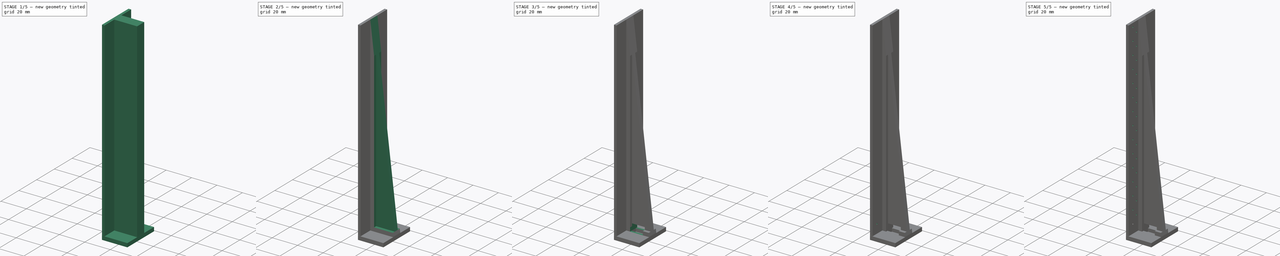
[diagram: build sequence overview — one tinted view per stage of 5, left to right]
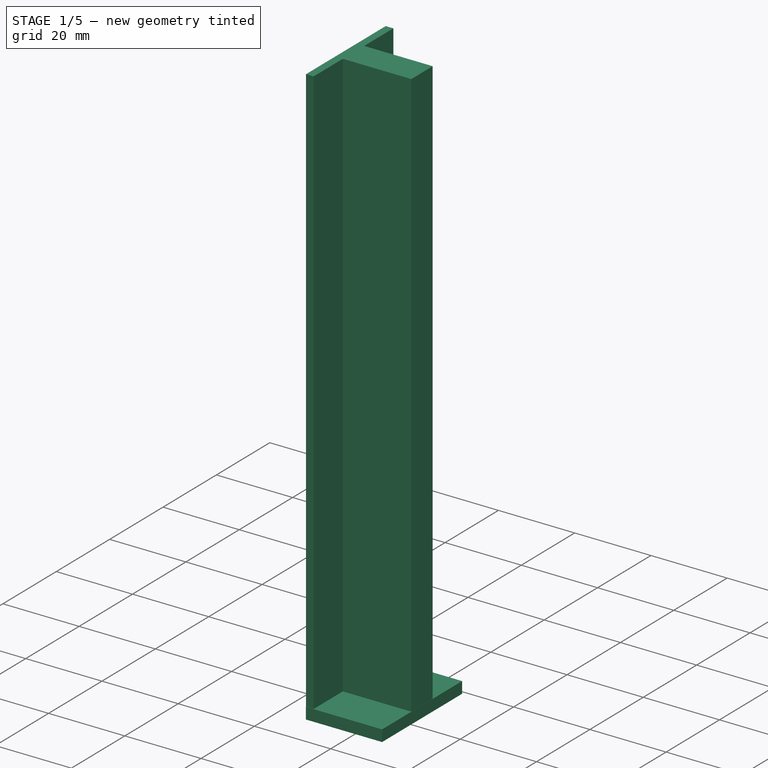
[diagram: stage 1 of 5 — iso view after this stage's code; geometry added in this stage tinted green]
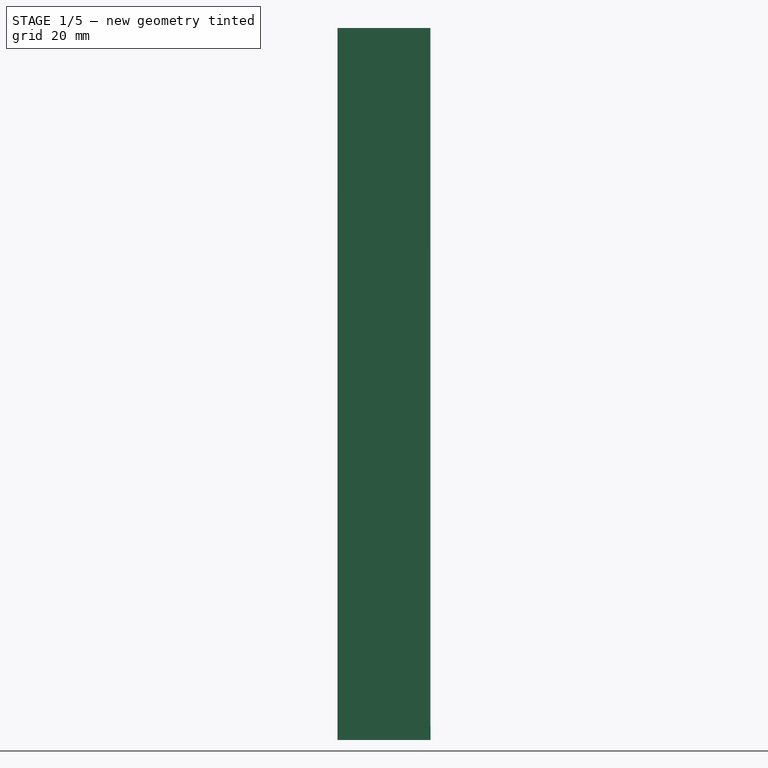
[diagram: stage 1 of 5 — front view after this stage's code; geometry added in this stage tinted green]
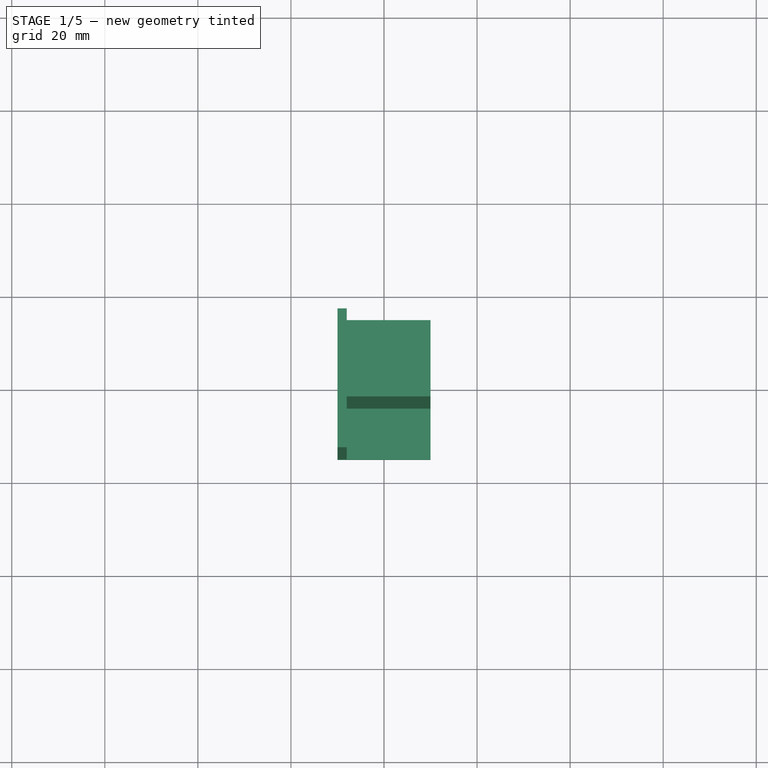
[diagram: stage 1 of 5 — top view after this stage's code; geometry added in this stage tinted green]
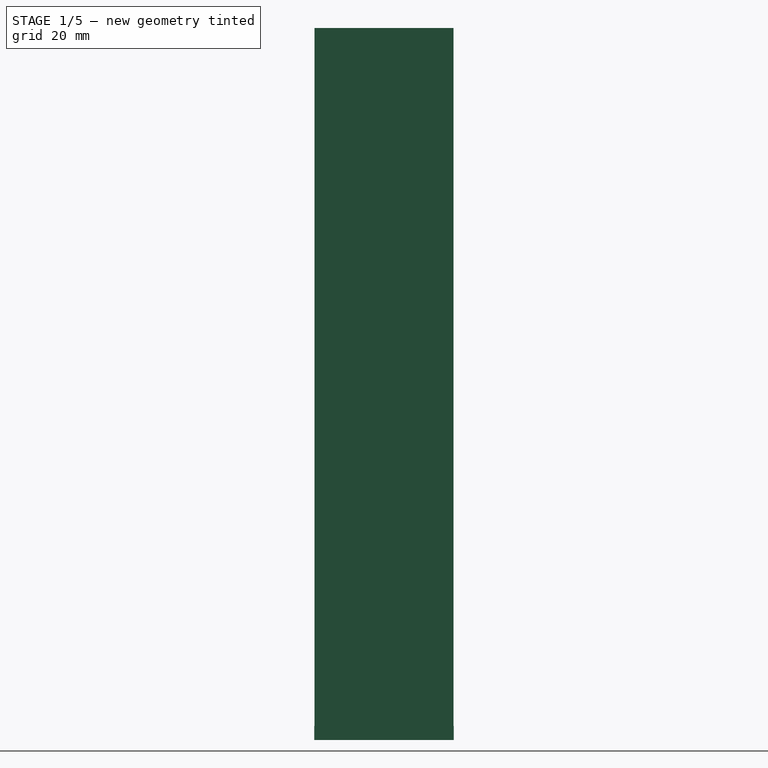
[diagram: stage 1 of 5 — right view after this stage's code; geometry added in this stage tinted green]
FCSTD DOCUMENT  (FreeCAD 0.20R29410 (Git))
Label: reglet
License: All rights reserved
LicenseURL: http://en.wikipedia.org/wiki/All_rights_reserved
objects: Sketcher::SketchObject×15, PartDesign::Pocket×10, PartDesign::LinearPattern×4, PartDesign::Pad×3, PartDesign::Body×1
note: 46 computed .brp shape members not serialized (recipe doc carries the construction recipe); baked Part::Feature solids carry a one-line shape summary decoded from their .brp

FEATURE [Sketcher::SketchObject] Sketch
  FullyConstrained = true
  MapMode = 5
  Support = -> [XY_Plane]
  sketch-geometry (4):
    g0: LineSegment StartX=10 StartY=15 StartZ=0 EndX=-10 EndY=15 EndZ=0
    g1: LineSegment StartX=-10 StartY=15 StartZ=0 EndX=-10 EndY=-15 EndZ=0
    g2: LineSegment StartX=-10 StartY=-15 StartZ=0 EndX=10 EndY=-15 EndZ=0
    g3: LineSegment StartX=10 StartY=-15 StartZ=0 EndX=10 EndY=15 EndZ=0
  constraints (9):
    c: Coincident(g0,g1)
    c: Coincident(g1,g2)
    c: Coincident(g2,g3)
    c: Coincident(g3,g0)
    c: Symmetric(g0,g2,g-1)
    c: Symmetric(g0,g1,g-1)
    c: Symmetric(g0,g0,g-2)
    c: DistanceX(g0,g0) = 20
    c: DistanceY(g3,g3) = 30
FEATURE [PartDesign::Pad] Pad
  Direction = (0,0,1)
  Length = 3
  Length2 = 10
  Profile = -> Sketch
  ReferenceAxis = -> Sketch [N_Axis]
  Type = 0
FEATURE [Sketcher::SketchObject] Sketch001
  FullyConstrained = false
  MapMode = 5
  Placement = pos=(0,0,3) rot=(0,0,1;0rad)
  Support = -> [Pad]
  sketch-geometry (4):
    g0: LineSegment StartX=-10 StartY=14.925 StartZ=0 EndX=-8 EndY=14.925 EndZ=0
    g1: LineSegment StartX=-8 StartY=14.925 StartZ=0 EndX=-8 EndY=-14.925 EndZ=0
    g2: LineSegment StartX=-8 StartY=-14.925 StartZ=0 EndX=-10 EndY=-14.925 EndZ=0
    g3: LineSegment StartX=-10 StartY=-14.925 StartZ=0 EndX=-10 EndY=14.925 EndZ=0
  constraints (9):
    c: Coincident(g0,g1)
    c: Coincident(g1,g2)
    c: Coincident(g2,g3)
    c: Coincident(g3,g0)
    c: Horizontal(g2)
    c: DistanceX(g0,g-1) = 10
    c: Symmetric(g2,g0,g-1)
    c: DistanceX(g0,g0) = 2
    c: Symmetric(g0,g1,g-1)
FEATURE [PartDesign::Pad] Pad001
  BaseFeature = -> Pad
  Direction = (0,0,1)
  Length = 150
  Length2 = 10
  Profile = -> Sketch001
  ReferenceAxis = -> Sketch001 [N_Axis]
  Type = 0
FEATURE [Sketcher::SketchObject] Sketch002
  FullyConstrained = true
  MapMode = 5
  Placement = pos=(0,0,3) rot=(0,0,1;0rad)
  Support = -> [Pad001]
FEATURE [Sketcher::SketchObject] Sketch003
  FullyConstrained = false
  MapMode = 5
  Placement = pos=(0,0,3) rot=(0,0,1;0rad)
  Support = -> [Pad001]
  sketch-geometry (4):
    g0: LineSegment StartX=-8.02879 StartY=4 StartZ=0 EndX=9.97121 EndY=4 EndZ=0
    g1: LineSegment StartX=9.97121 StartY=4 StartZ=0 EndX=9.97121 EndY=-4 EndZ=0
    g2: LineSegment StartX=9.97121 StartY=-4 StartZ=0 EndX=-8.00779 EndY=-4 EndZ=0
    g3: LineSegment StartX=-8.00779 StartY=-4 StartZ=0 EndX=-8.02879 EndY=4 EndZ=0
  constraints (9):
    c: Coincident(g0,g1)
    c: Coincident(g1,g2)
    c: Coincident(g2,g3)
    c: Coincident(g3,g0)
    c: Horizontal(g0)
    c: Horizontal(g2)
    c: Symmetric(g0,g1,g-1)
    c: DistanceX(g0,g0) = 18
    c: DistanceY(g1,g1) = 8
FEATURE [PartDesign::Pad] Pad002
  BaseFeature = -> Pad001
  Direction = (0,0,1)
  Length = 150
  Length2 = 10
  Profile = -> Sketch003
  ReferenceAxis = -> Sketch003 [N_Axis]
  Type = 0
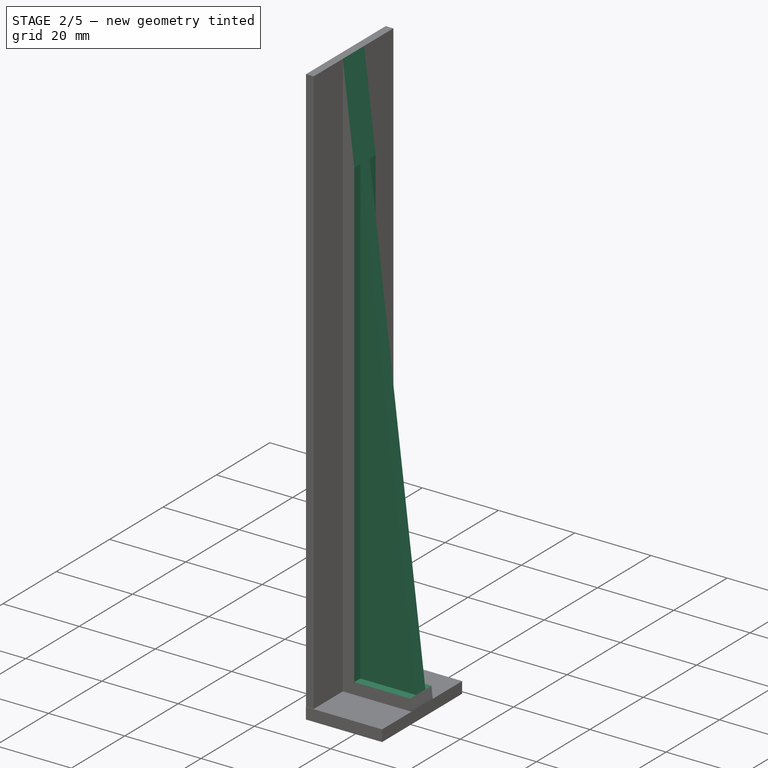
[diagram: stage 2 of 5 — iso view after this stage's code; geometry added in this stage tinted green]
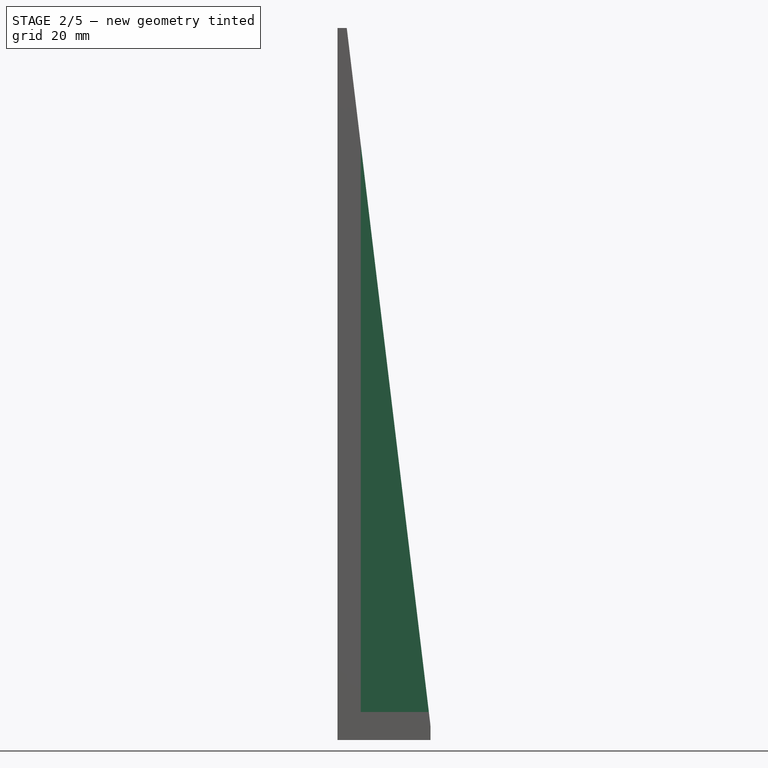
[diagram: stage 2 of 5 — front view after this stage's code; geometry added in this stage tinted green]
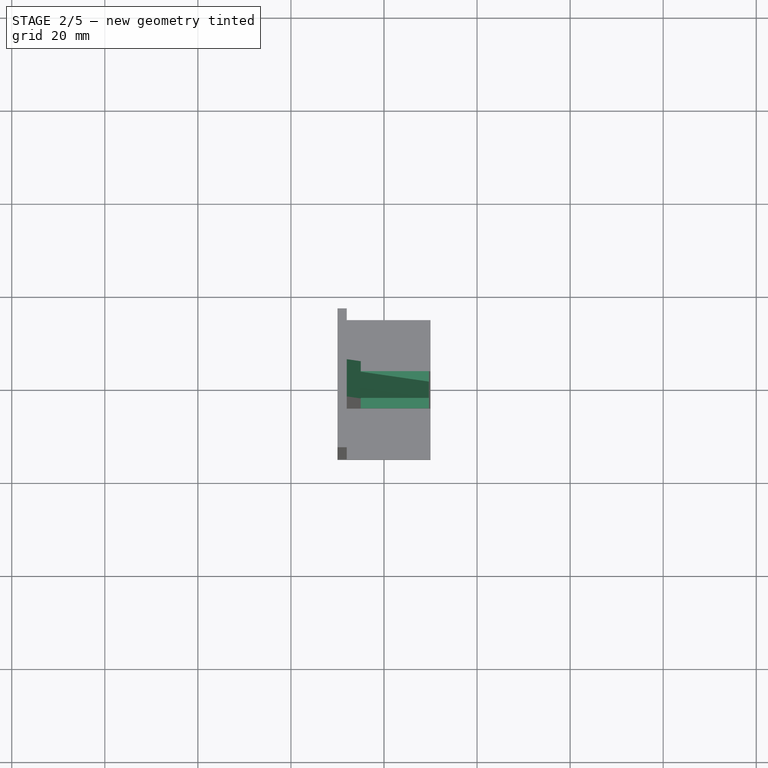
[diagram: stage 2 of 5 — top view after this stage's code; geometry added in this stage tinted green]
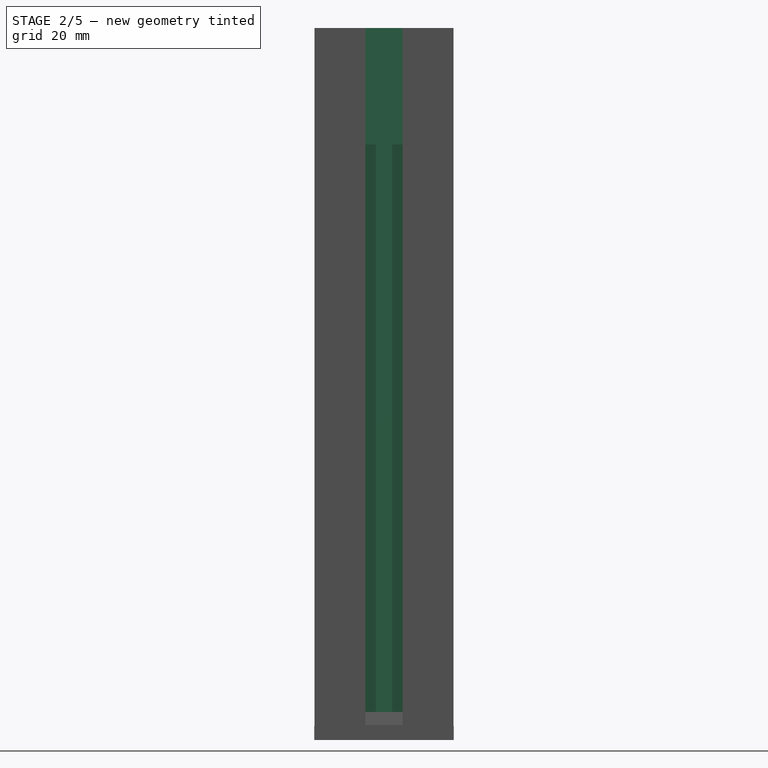
[diagram: stage 2 of 5 — right view after this stage's code; geometry added in this stage tinted green]
FEATURE [Sketcher::SketchObject] Sketch004
  FullyConstrained = true
  MapMode = 5
  Placement = pos=(0,-4,0) rot=(1,0,0;1.5708rad)
  Support = -> [Pad002]
FEATURE [Sketcher::SketchObject] Sketch005
  FullyConstrained = true
  MapMode = 5
  Placement = pos=(0,-4,0) rot=(1,0,0;1.5708rad)
  Support = -> [Pad002]
  sketch-geometry (3):
    g0: LineSegment StartX=-8 StartY=153 StartZ=0 EndX=10 EndY=153 EndZ=0
    g1: LineSegment StartX=10 StartY=3 StartZ=0 EndX=10 EndY=153 EndZ=0
    g2: LineSegment StartX=-8 StartY=153 StartZ=0 EndX=10 EndY=3 EndZ=0
  constraints (9):
    c: Horizontal(g0)
    c: Coincident(g1,g0)
    c: Vertical(g1)
    c: Coincident(g2,g0)
    c: Coincident(g2,g1)
    c: DistanceY(g-1,g0) = 153
    c: DistanceX(g-1,g1) = 10
    c: DistanceX(g0,g0) = 18
    c: DistanceY(g-1,g1) = 3
FEATURE [PartDesign::Pocket] Pocket
  BaseFeature = -> Pad002
  Direction = (0,1,-2e-16)
  Length = 8
  Length2 = 5
  Profile = -> Sketch005
  ReferenceAxis = -> Sketch005 [N_Axis]
  Type = 0
FEATURE [Sketcher::SketchObject] Sketch006
  FullyConstrained = true
  MapMode = 5
  Placement = pos=(0,-4,0) rot=(1,0,0;1.5708rad)
  Support = -> [Pocket]
  sketch-geometry (3):
    g0: LineSegment StartX=-5 StartY=140 StartZ=0 EndX=-5 EndY=6 EndZ=0
    g1: LineSegment StartX=-5 StartY=6 StartZ=0 EndX=15 EndY=6 EndZ=0
    g2: LineSegment StartX=15 StartY=6 StartZ=0 EndX=-5 EndY=140 EndZ=0
  constraints (9):
    c: Vertical(g0)
    c: Coincident(g0,g1)
    c: Horizontal(g1)
    c: Coincident(g1,g2)
    c: Coincident(g2,g0)
    c: DistanceY(g-1,g0) = 140
    c: DistanceY(g-1,g0) = 6
    c: DistanceX(g0,g-1) = 5
    c: DistanceX(g-1,g1) = 15
FEATURE [PartDesign::Pocket] Pocket001
  BaseFeature = -> Pocket
  Direction = (0,1,-2e-16)
  Length = 2.25
  Length2 = 5
  Profile = -> Sketch006
  ReferenceAxis = -> Sketch006 [N_Axis]
  Type = 0
FEATURE [Sketcher::SketchObject] Sketch007
  FullyConstrained = true
  MapMode = 5
  Placement = pos=(0,4,0) rot=(0,0.707107,0.707107;3.14159rad)
  Support = -> [Pocket001]
  sketch-geometry (3):
    g0: LineSegment StartX=-13 StartY=6 StartZ=0 EndX=5 EndY=6 EndZ=0
    g1: LineSegment StartX=5 StartY=6 StartZ=0 EndX=5 EndY=150 EndZ=0
    g2: LineSegment StartX=-13 StartY=6 StartZ=0 EndX=5 EndY=150 EndZ=0
  constraints (9):
    c: Horizontal(g0)
    c: Coincident(g1,g0)
    c: Vertical(g1)
    c: Coincident(g2,g0)
    c: Coincident(g2,g1)
    c: DistanceY(g-1,g0) = 6
    c: DistanceX(g-1,g0) = 5
    c: DistanceY(g-1,g1) = 150
    c: DistanceX(g0,g-1) = 13
FEATURE [PartDesign::Pocket] Pocket002
  BaseFeature = -> Pocket001
  Direction = (0,-1,2e-16)
  Length = 2.25
  Length2 = 5
  Profile = -> Sketch007
  ReferenceAxis = -> Sketch007 [N_Axis]
  Type = 0
FEATURE [Sketcher::SketchObject] Sketch008
  FullyConstrained = true
  MapMode = 5
  Placement = pos=(0,0,3) rot=(0,0,1;0rad)
  Support = -> [Pocket002]
  sketch-geometry (4):
    g0: LineSegment StartX=-5 StartY=2.5 StartZ=0 EndX=5 EndY=2.5 EndZ=0
    g1: LineSegment StartX=5 StartY=2.5 StartZ=0 EndX=5 EndY=-2.5 EndZ=0
    g2: LineSegment StartX=5 StartY=-2.5 StartZ=0 EndX=-5 EndY=-2.5 EndZ=0
    g3: LineSegment StartX=-5 StartY=-2.5 StartZ=0 EndX=-5 EndY=2.5 EndZ=0
  constraints (9):
    c: Coincident(g0,g1)
    c: Coincident(g1,g2)
    c: Coincident(g2,g3)
    c: Coincident(g3,g0)
    c: Symmetric(g0,g0,g-2)
    c: Symmetric(g1,g2,g-2)
    c: Symmetric(g0,g1,g-1)
    c: DistanceX(g0,g0) = 10
    c: DistanceY(g1,g1) = 5
FEATURE [PartDesign::Pocket] Pocket003
  BaseFeature = -> Pocket002
  Direction = (0,0,-1)
  Length = 2.5
  Length2 = 5
  Profile = -> Sketch008
  ReferenceAxis = -> Sketch008 [N_Axis]
  Type = 0
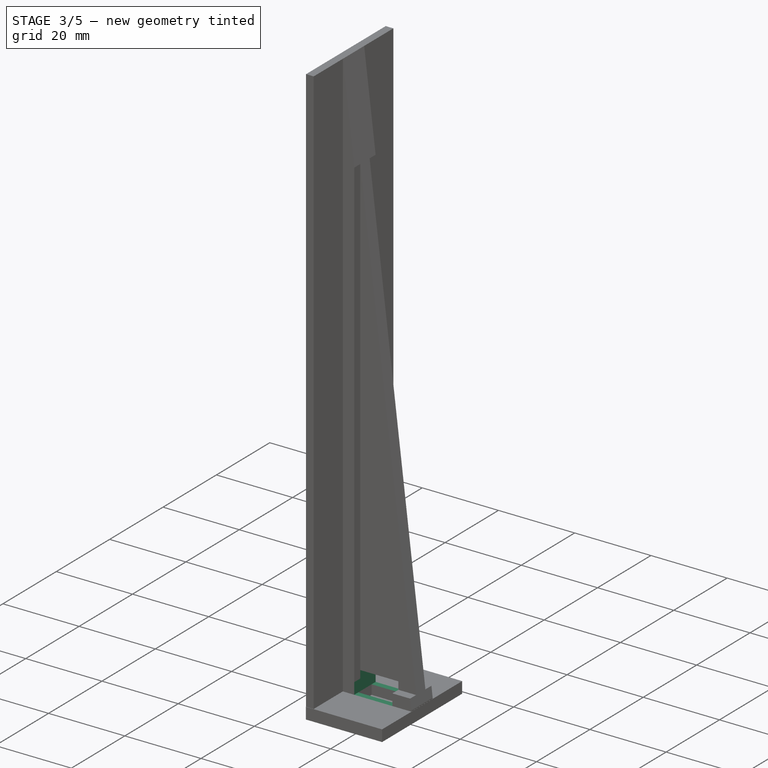
[diagram: stage 3 of 5 — iso view after this stage's code; geometry added in this stage tinted green]
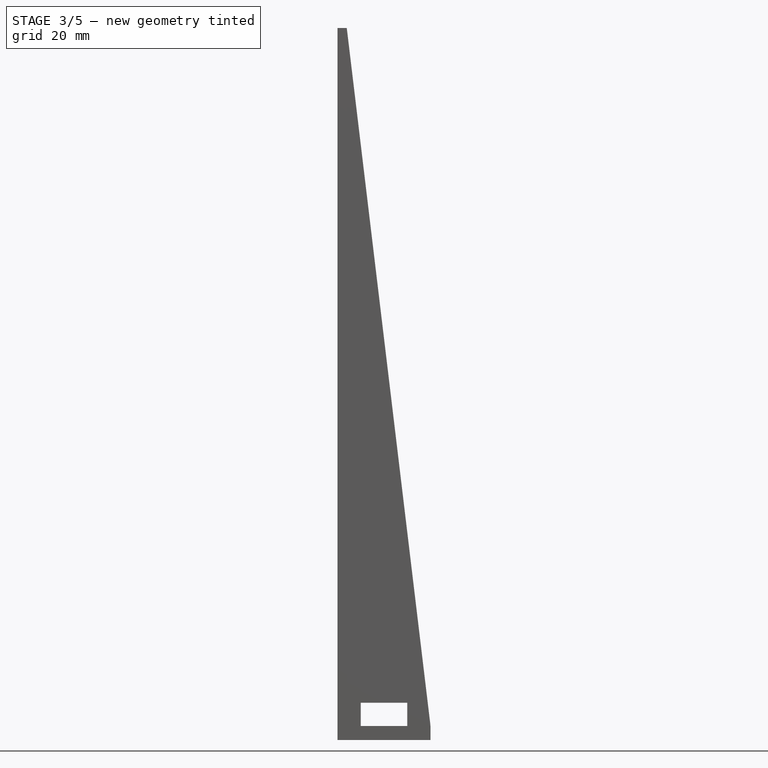
[diagram: stage 3 of 5 — front view after this stage's code; geometry added in this stage tinted green]
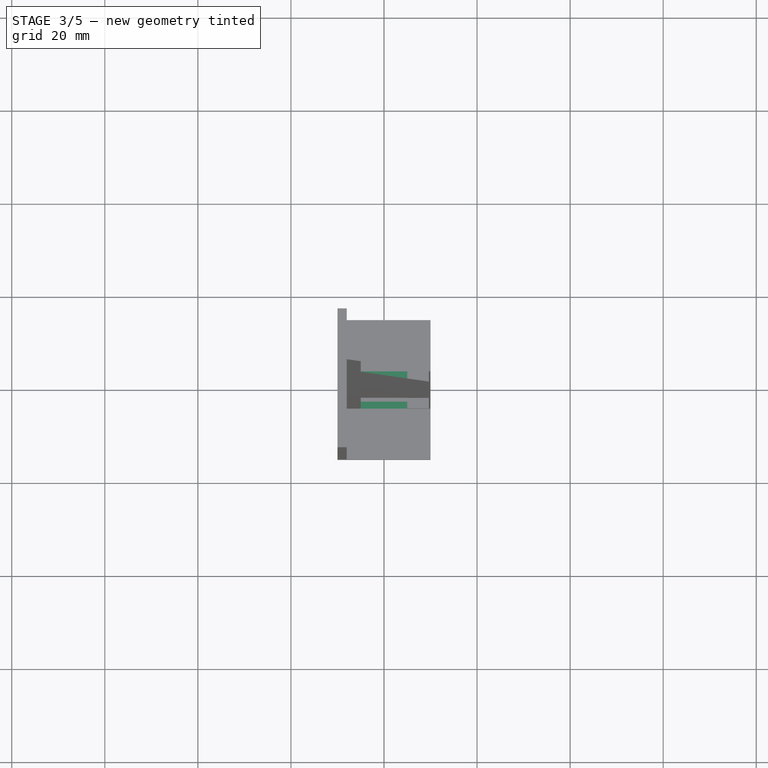
[diagram: stage 3 of 5 — top view after this stage's code; geometry added in this stage tinted green]
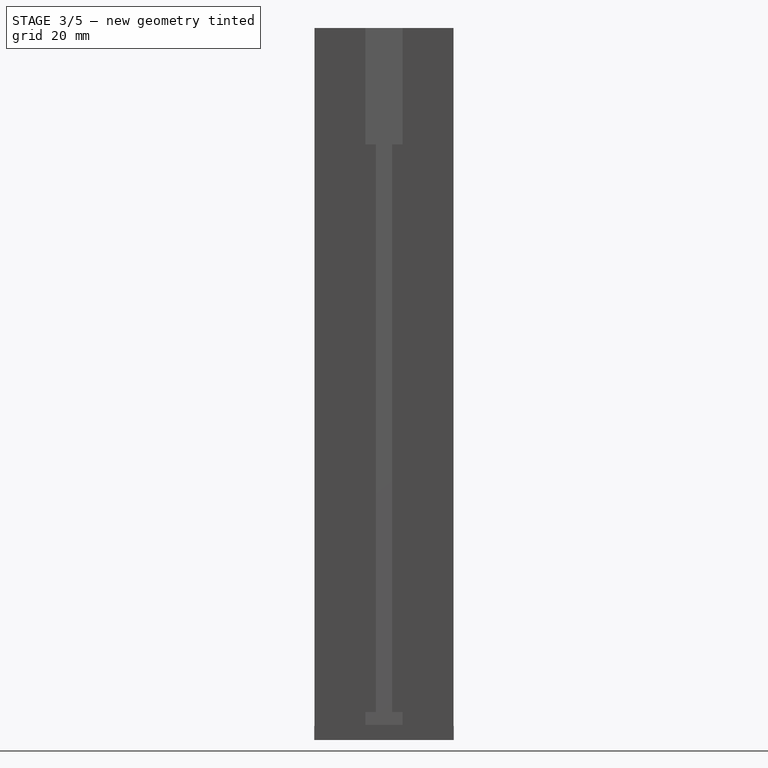
[diagram: stage 3 of 5 — right view after this stage's code; geometry added in this stage tinted green]
FEATURE [Sketcher::SketchObject] Sketch009
  FullyConstrained = true
  MapMode = 5
  Placement = pos=(0,0,3) rot=(0,0,1;0rad)
  Support = -> [Pocket003]
  sketch-geometry (4):
    g0: LineSegment StartX=-5 StartY=5 StartZ=0 EndX=5 EndY=5 EndZ=0
    g1: LineSegment StartX=5 StartY=5 StartZ=0 EndX=5 EndY=-5 EndZ=0
    g2: LineSegment StartX=5 StartY=-5 StartZ=0 EndX=-5 EndY=-5 EndZ=0
    g3: LineSegment StartX=-5 StartY=-5 StartZ=0 EndX=-5 EndY=5 EndZ=0
  constraints (9):
    c: Coincident(g0,g1)
    c: Coincident(g1,g2)
    c: Coincident(g2,g3)
    c: Coincident(g3,g0)
    c: Symmetric(g0,g0,g-2)
    c: Symmetric(g1,g2,g-2)
    c: Symmetric(g0,g1,g-1)
    c: DistanceX(g0,g0) = 10
    c: DistanceY(g1,g1) = 10
FEATURE [PartDesign::Pocket] Pocket004
  BaseFeature = -> Pocket003
  Direction = (0,0,-1)
  Length = 5
  Length2 = 5
  Profile = -> Sketch009
  ReferenceAxis = -> Sketch009 [N_Axis]
  Reversed = true
  Type = 0
FEATURE [Sketcher::SketchObject] Sketch010
  FullyConstrained = true
  MapMode = 5
  Placement = pos=(-10,0,0) rot=(0.57735,-0.57735,-0.57735;2.0944rad)
  Support = -> [Pocket004]
  sketch-geometry (4):
    g0: LineSegment StartX=-10 StartY=0 StartZ=0 EndX=-9 EndY=0 EndZ=0
    g1: LineSegment StartX=-9 StartY=0 StartZ=0 EndX=-9 EndY=150.25 EndZ=0
    g2: LineSegment StartX=-9 StartY=150.25 StartZ=0 EndX=-10 EndY=150.25 EndZ=0
    g3: LineSegment StartX=-10 StartY=150.25 StartZ=0 EndX=-10 EndY=0 EndZ=0
  constraints (12):
    c: Coincident(g0,g1)
    c: Coincident(g1,g2)
    c: Coincident(g2,g3)
    c: Coincident(g3,g0)
    c: Horizontal(g0)
    c: Horizontal(g2)
    c: Vertical(g1)
    c: Vertical(g3)
    c: PointOnObject(g0,g-1)
    c: DistanceY(g3,g3) = 150.25
    c: DistanceX(g2,g2) = 1
    c: DistanceX(g0,g-1) = 10
FEATURE [PartDesign::Pocket] Pocket005
  BaseFeature = -> Pocket004
  Direction = (1,0,0)
  Length = 1
  Length2 = 5
  Profile = -> Sketch010
  ReferenceAxis = -> Sketch010 [N_Axis]
  Type = 0
FEATURE [Sketcher::SketchObject] Sketch011
  FullyConstrained = true
  MapMode = 5
  Placement = pos=(-10,0,0) rot=(0.57735,-0.57735,-0.57735;2.0944rad)
  Support = -> [Pocket005]
  sketch-geometry (4):
    g0: LineSegment StartX=-9.5 StartY=0.25 StartZ=0 EndX=-4.5 EndY=0.25 EndZ=0
    g1: LineSegment StartX=-4.5 StartY=0.25 StartZ=0 EndX=-4.5 EndY=-0.25 EndZ=0
    g2: LineSegment StartX=-4.5 StartY=-0.25 StartZ=0 EndX=-9.5 EndY=-0.25 EndZ=0
    g3: LineSegment StartX=-9.5 StartY=-0.25 StartZ=0 EndX=-9.5 EndY=0.25 EndZ=0
  constraints (10):
    c: Coincident(g0,g1)
    c: Coincident(g1,g2)
    c: Coincident(g2,g3)
    c: Coincident(g3,g0)
    c: Horizontal(g2)
    c: DistanceX(g2,g-1) = 9.5
    c: DistanceY(g1,g1) = 0.5
    c: Symmetric(g0,g1,g-1)
    c: Symmetric(g0,g2,g-1)
    c: DistanceX(g2,g2) = 5
FEATURE [PartDesign::Pocket] Pocket006
  BaseFeature = -> Pocket005
  Direction = (1,0,0)
  Length = 1
  Length2 = 5
  Profile = -> Sketch011
  ReferenceAxis = -> Sketch011 [N_Axis]
  Type = 0
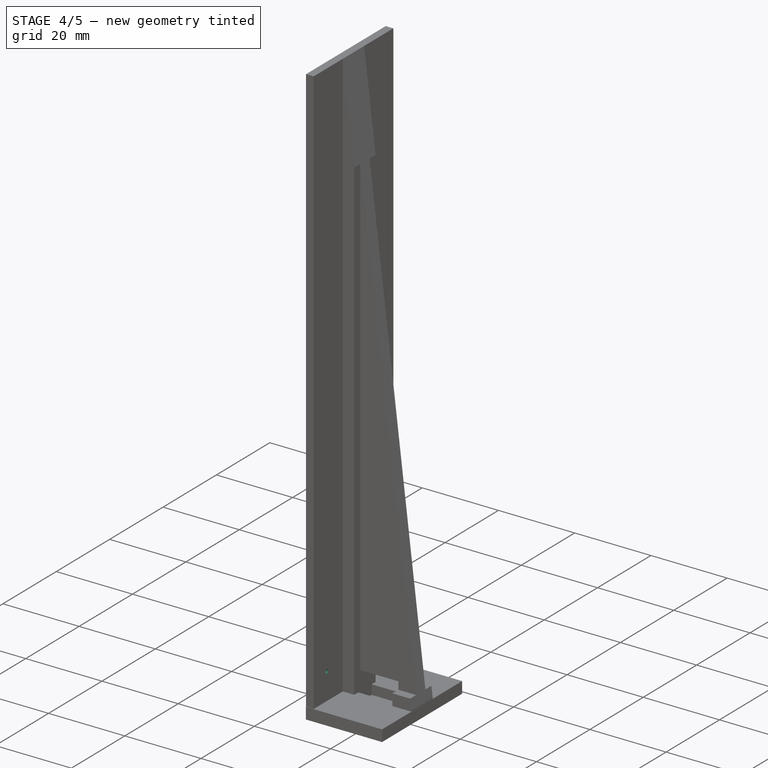
[diagram: stage 4 of 5 — iso view after this stage's code; geometry added in this stage tinted green]
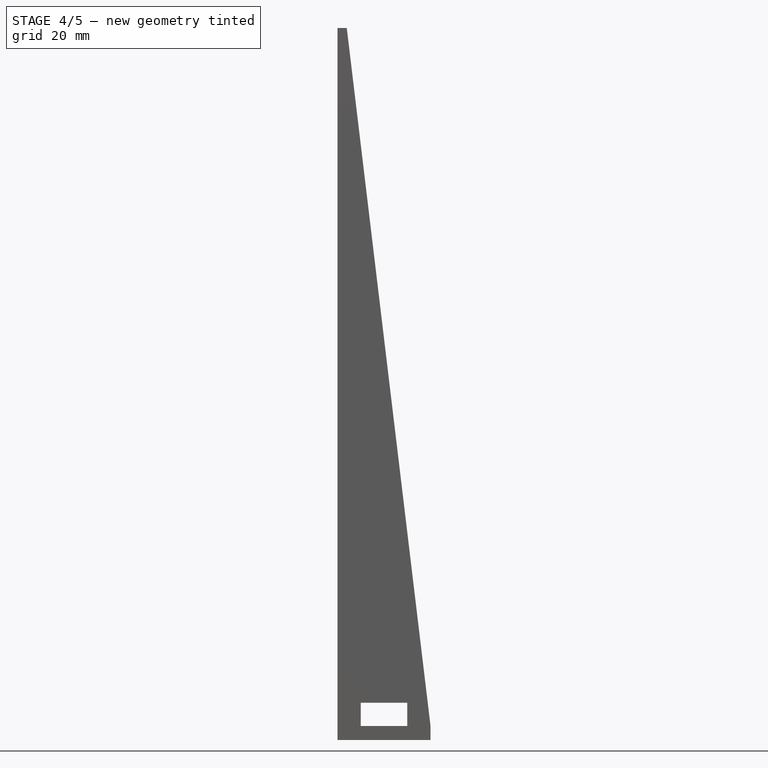
[diagram: stage 4 of 5 — front view after this stage's code; geometry added in this stage tinted green]
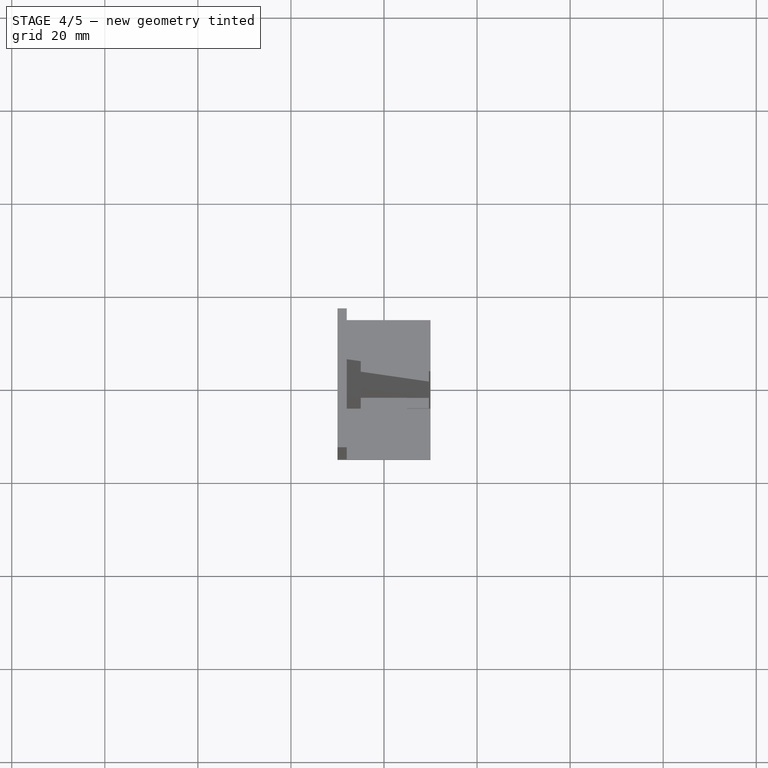
[diagram: stage 4 of 5 — top view after this stage's code; geometry added in this stage tinted green]
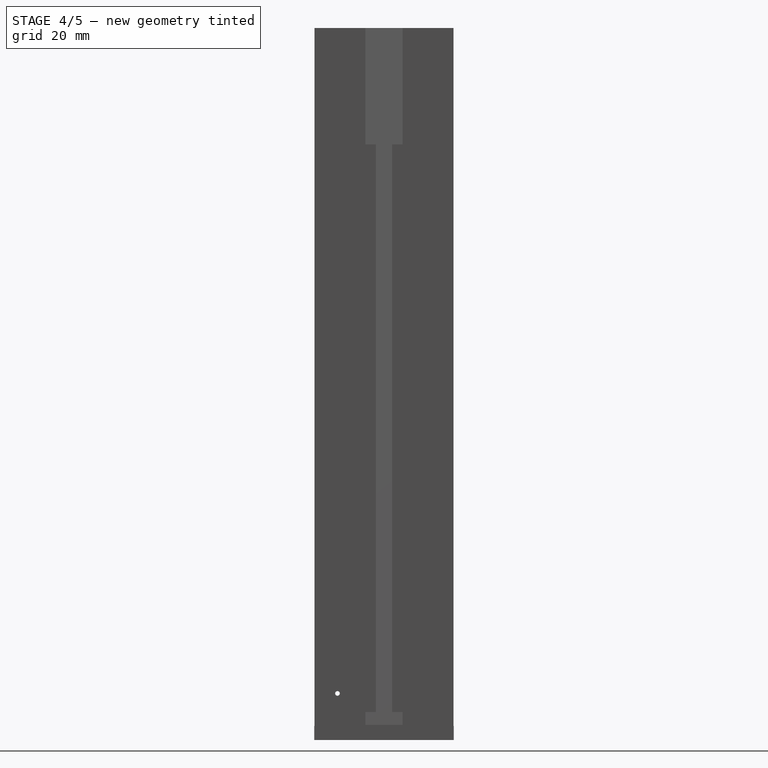
[diagram: stage 4 of 5 — right view after this stage's code; geometry added in this stage tinted green]
FEATURE [PartDesign::LinearPattern] LinearPattern
  BaseFeature = -> Pocket006
  Direction = -> Z_Axis
  Length = 150
  Occurrences = 16
  Originals = -> [Pocket006]
FEATURE [Sketcher::SketchObject] Sketch012
  FullyConstrained = true
  MapMode = 5
  Placement = pos=(-10,0,0) rot=(0.57735,-0.57735,-0.57735;2.0944rad)
  Support = -> [LinearPattern]
  sketch-geometry (4):
    g0: LineSegment StartX=-9.5 StartY=5.25 StartZ=0 EndX=-7 EndY=5.25 EndZ=0
    g1: LineSegment StartX=-7 StartY=5.25 StartZ=0 EndX=-7 EndY=4.75 EndZ=0
    g2: LineSegment StartX=-7 StartY=4.75 StartZ=0 EndX=-9.5 EndY=4.75 EndZ=0
    g3: LineSegment StartX=-9.5 StartY=4.75 StartZ=0 EndX=-9.5 EndY=5.25 EndZ=0
  constraints (12):
    c: Coincident(g0,g1)
    c: Coincident(g1,g2)
    c: Coincident(g2,g3)
    c: Coincident(g3,g0)
    c: Horizontal(g0)
    c: Horizontal(g2)
    c: Vertical(g1)
    c: Vertical(g3)
    c: DistanceY(g1,g1) = 0.5
    c: DistanceX(g0,g0) = 2.5
    c: DistanceX(g2,g-1) = 9.5
    c: DistanceY(g-1,g2) = 4.75
FEATURE [PartDesign::Pocket] Pocket007
  BaseFeature = -> LinearPattern
  Direction = (1,0,0)
  Length = 1
  Length2 = 5
  Profile = -> Sketch012
  ReferenceAxis = -> Sketch012 [N_Axis]
  Type = 0
FEATURE [PartDesign::LinearPattern] LinearPattern001
  BaseFeature = -> Pocket007
  Direction = -> Z_Axis
  Length = 140
  Occurrences = 15
  Originals = -> [Pocket007]
FEATURE [Sketcher::SketchObject] Sketch013
  FullyConstrained = true
  MapMode = 5
  Placement = pos=(-10,0,0) rot=(0.57735,-0.57735,-0.57735;2.0944rad)
  Support = -> [LinearPattern001]
  sketch-geometry (1):
    g0: Circle CenterX=10 CenterY=10 CenterZ=0 NormalX=0 NormalY=0 NormalZ=1 AngleXU=0 Radius=0.5
  constraints (3):
    c: Diameter(g0) = 1
    c: DistanceX(g-1,g0) = 10
    c: DistanceY(g-1,g0) = 10
FEATURE [PartDesign::Pocket] Pocket008
  BaseFeature = -> LinearPattern001
  Direction = (1,0,0)
  Length = 5
  Length2 = 5
  Profile = -> Sketch013
  ReferenceAxis = -> Sketch013 [N_Axis]
  Type = 0
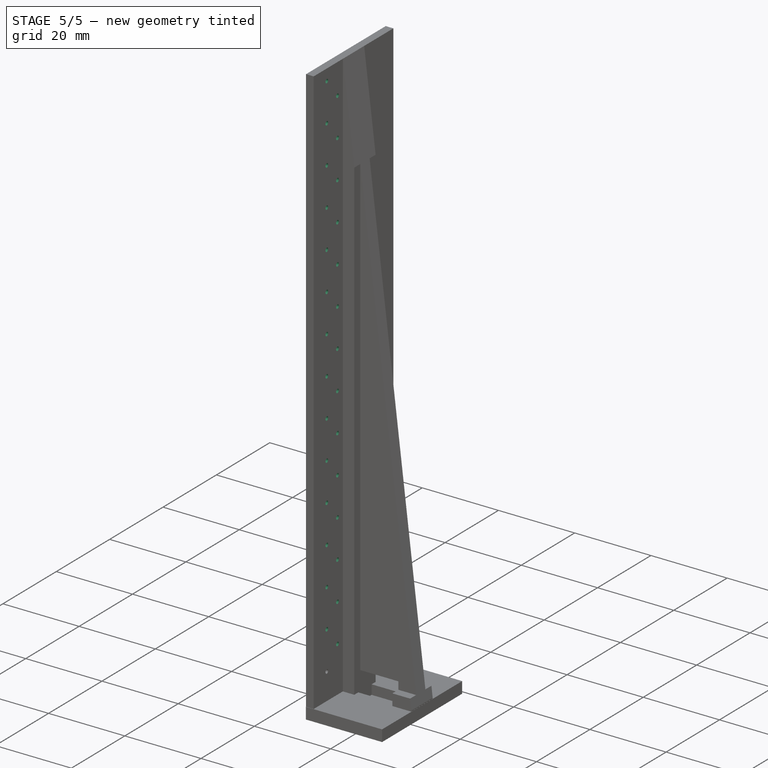
[diagram: stage 5 of 5 — iso view after this stage's code; geometry added in this stage tinted green]
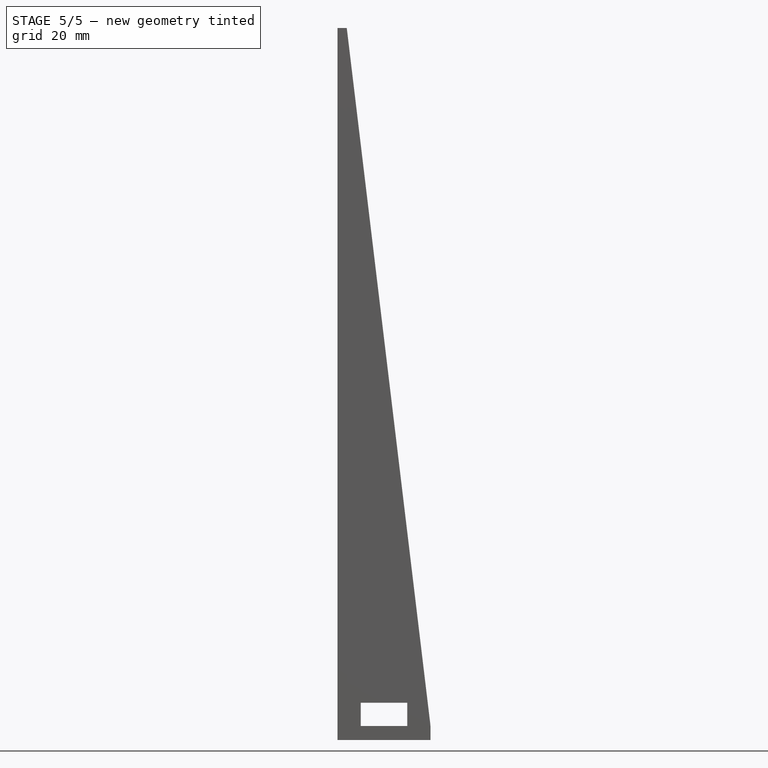
[diagram: stage 5 of 5 — front view after this stage's code; geometry added in this stage tinted green]
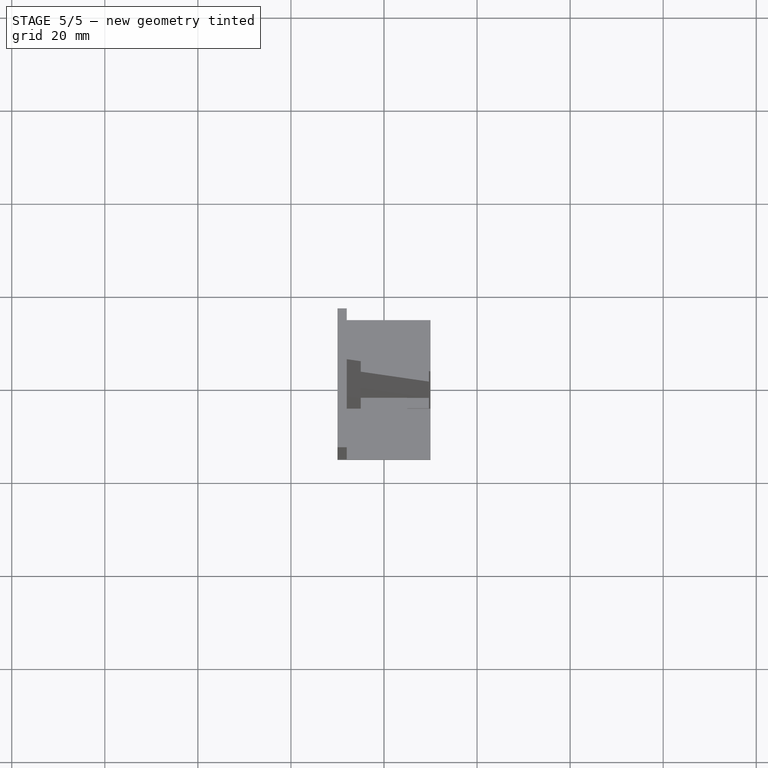
[diagram: stage 5 of 5 — top view after this stage's code; geometry added in this stage tinted green]
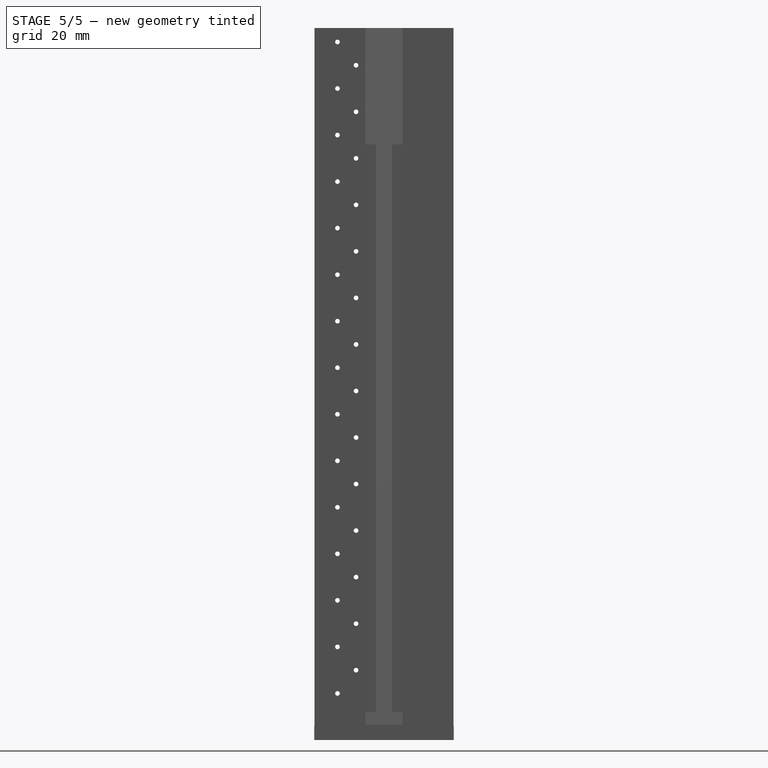
[diagram: stage 5 of 5 — right view after this stage's code; geometry added in this stage tinted green]
FEATURE [PartDesign::LinearPattern] LinearPattern002
  BaseFeature = -> Pocket008
  Direction = -> Z_Axis
  Length = 140
  Occurrences = 15
  Originals = -> [Pocket008]
FEATURE [Sketcher::SketchObject] Sketch014
  FullyConstrained = true
  MapMode = 5
  Placement = pos=(-10,0,0) rot=(0.57735,-0.57735,-0.57735;2.0944rad)
  Support = -> [LinearPattern002]
  sketch-geometry (1):
    g0: Circle CenterX=6 CenterY=15 CenterZ=0 NormalX=0 NormalY=0 NormalZ=1 AngleXU=0 Radius=0.5
  constraints (3):
    c: Diameter(g0) = 1
    c: DistanceY(g-1,g0) = 15
    c: DistanceX(g-1,g0) = 6
FEATURE [PartDesign::Pocket] Pocket009
  BaseFeature = -> LinearPattern002
  Direction = (1,0,0)
  Length = 5
  Length2 = 5
  Profile = -> Sketch014
  ReferenceAxis = -> Sketch014 [N_Axis]
  Type = 0
FEATURE [PartDesign::LinearPattern] LinearPattern003
  BaseFeature = -> Pocket009
  Direction = -> Z_Axis
  Length = 130
  Occurrences = 14
  Originals = -> [Pocket009]
FEATURE [PartDesign::Body] Body
  Group = -> [Sketch,Pad,Sketch001,Pad001,Sketch002,Sketch003,Pad002,Sketch004,Sketch005,Pocket,Sketch006,Pocket001,Sketch007,Pocket002,Sketch008,Pocket003,Sketch009,Pocket004,Sketch010,Pocket005,Sketch011,Pocket006,LinearPattern,Sketch012,Pocket007,LinearPattern001,Sketch013,Pocket008,LinearPattern002,Sketch014,Pocket009,LinearPattern003]
  Origin = -> Origin
  Tip = -> LinearPattern003
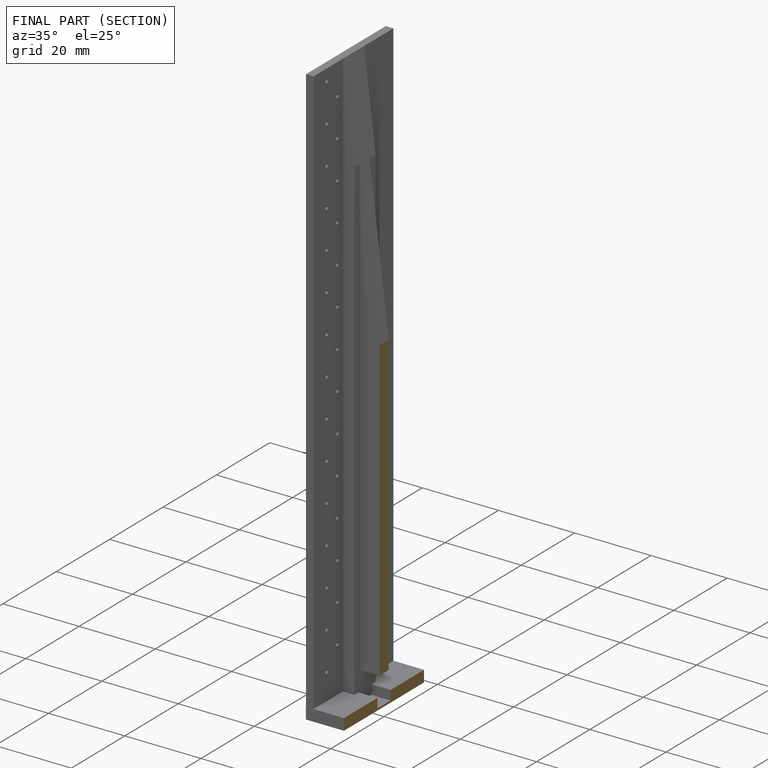
[diagram: finished part — half-section view (interior)]
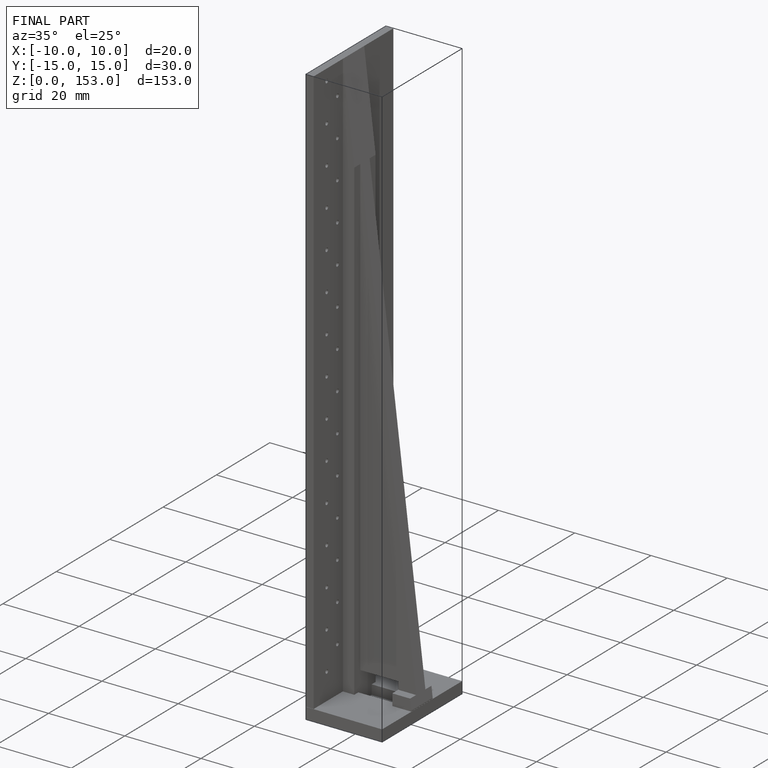
[diagram: finished part — iso view with bounding-box wireframe]
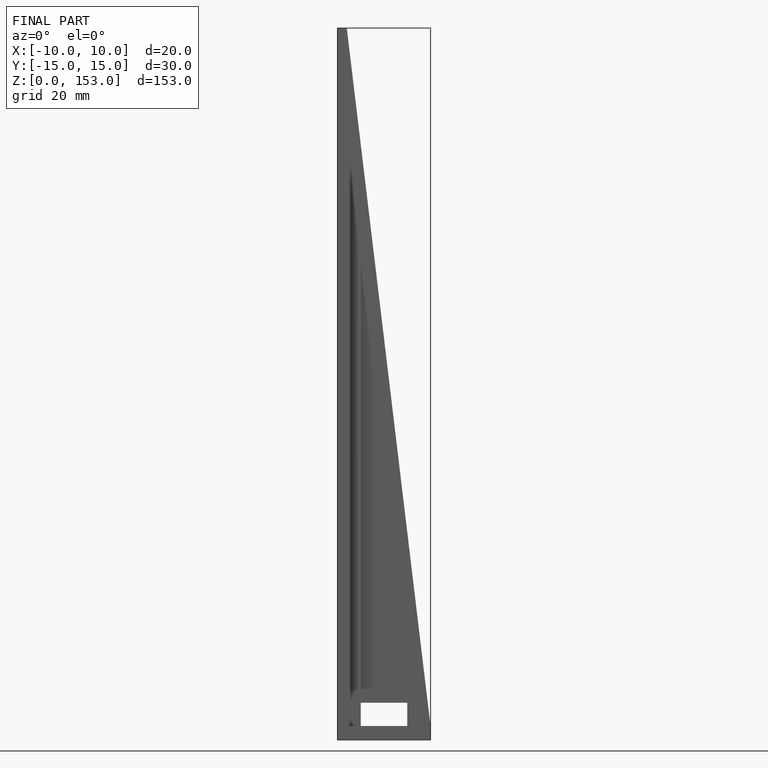
[diagram: finished part — front view with bounding-box wireframe]
